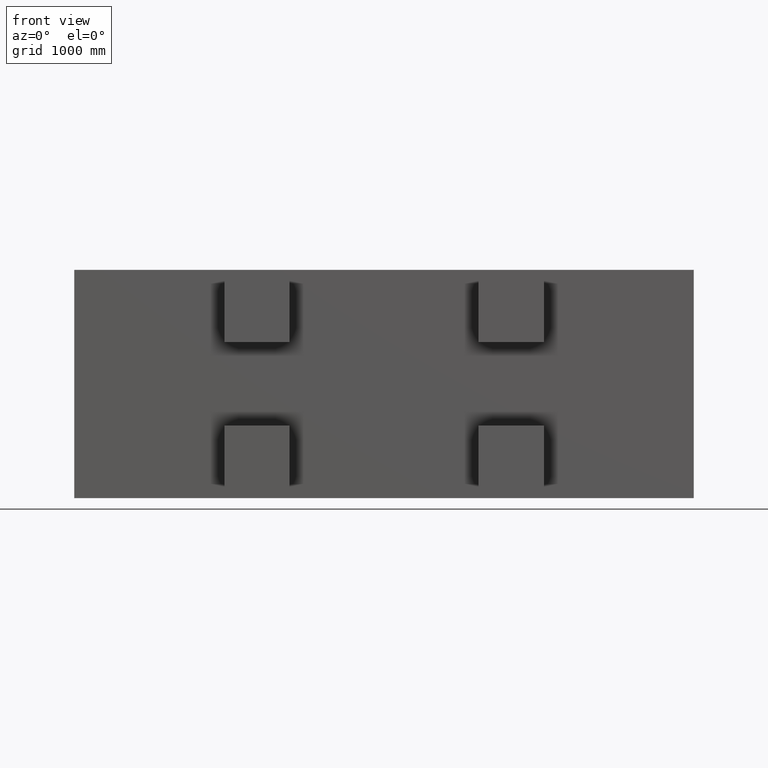
[diagram: clean part render]
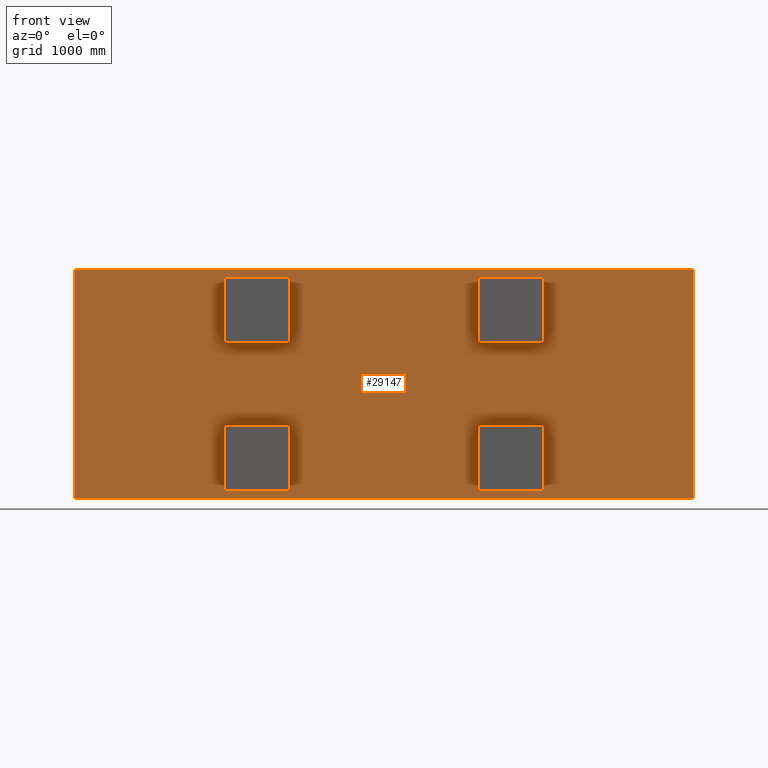
[diagram: same view with one face highlighted and labeled with its STEP entity id]
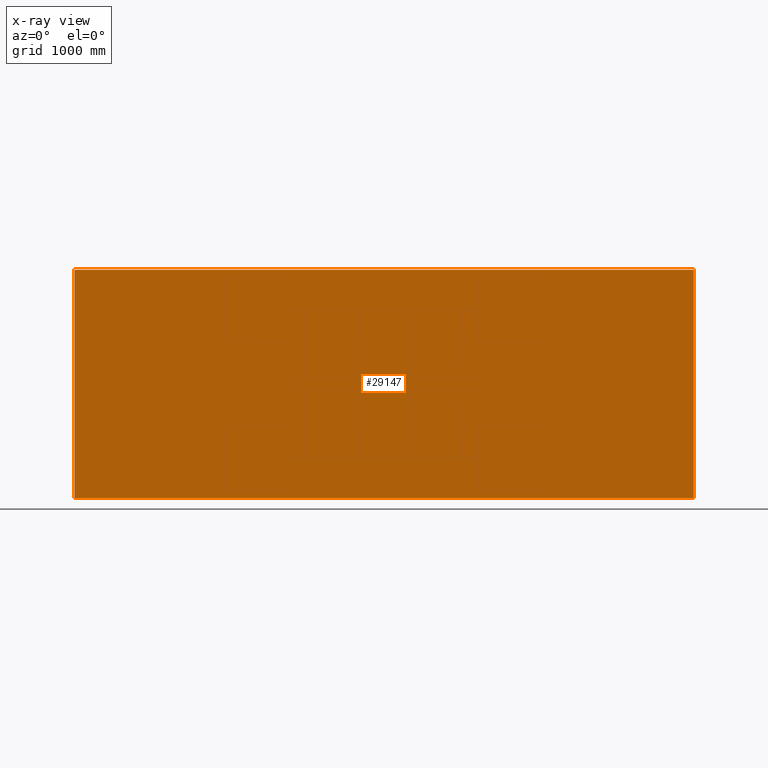
[diagram: x-ray of the same camera — body ghosted, the highlighted face saturated]
A machine part, front view. The second image highlights one B-rep face of the part: STEP entity #29147.
The next image is the same camera in x-ray: the body ghosted, the highlighted face saturated — about 0% of this face is hidden behind the body in this view.
In plain terms, the highlighted planar face has unit normal (0, -1, 0).
Its self-contained STEP definition (entity closure, byte-faithful):
#3901 = VECTOR ( 'NONE', #5804, 1000.000000000000000 ) ;
#3903 = VECTOR ( 'NONE', #5814, 1000.000000000000000 ) ;
#3906 = VECTOR ( 'NONE', #5822, 1000.000000000000000 ) ;
#3911 = VECTOR ( 'NONE', #5828, 1000.000000000000000 ) ;
#5784 = LINE ( 'NONE', #5802, #3901 ) ;
#5800 = LINE ( 'NONE', #5813, #3903 ) ;
#5802 = CARTESIAN_POINT ( 'NONE',  ( -2240.000000000000000, 700.0000000000000000, -2309.999999999999500 ) ) ;
#5803 = LINE ( 'NONE', #5821, #3906 ) ;
#5804 = DIRECTION ( 'NONE',  ( 0.0000000000000000000, 0.0000000000000000000, 1.000000000000000000 ) ) ;
#5813 = CARTESIAN_POINT ( 'NONE',  ( 5359.999999999999100, 700.0000000000000000, -2309.999999999999500 ) ) ;
#5814 = DIRECTION ( 'NONE',  ( -1.000000000000000000, 0.0000000000000000000, 0.0000000000000000000 ) ) ;
#5821 = CARTESIAN_POINT ( 'NONE',  ( 5359.999999999999100, 700.0000000000000000, -2309.999999999999500 ) ) ;
#5822 = DIRECTION ( 'NONE',  ( -0.0000000000000000000, -0.0000000000000000000, -1.000000000000000000 ) ) ;
#5826 = LINE ( 'NONE', #5827, #3911 ) ;
#5827 = CARTESIAN_POINT ( 'NONE',  ( 5359.999999999999100, 700.0000000000000000, 490.0000000000001100 ) ) ;
#5828 = DIRECTION ( 'NONE',  ( 1.000000000000000000, -0.0000000000000000000, -0.0000000000000000000 ) ) ;
#6419 = CARTESIAN_POINT ( 'NONE',  ( -2240.000000000000000, 700.0000000000000000, -2309.999999999999500 ) ) ;
#6425 = CARTESIAN_POINT ( 'NONE',  ( 5359.999999999999100, 700.0000000000000000, -2309.999999999999500 ) ) ;
#6426 = CARTESIAN_POINT ( 'NONE',  ( -2240.000000000000000, 700.0000000000000000, 490.0000000000001100 ) ) ;
#6429 = CARTESIAN_POINT ( 'NONE',  ( 5359.999999999999100, 700.0000000000000000, 490.0000000000001100 ) ) ;
#7982 = PLANE ( 'NONE',  #8946 ) ;
#7997 = FACE_OUTER_BOUND ( 'NONE', #21420, .T. ) ;
#8007 = CARTESIAN_POINT ( 'NONE',  ( -2239.999999999998600, 700.0000000000000000, 490.0000000000001100 ) ) ;
#8008 = DIRECTION ( 'NONE',  ( 0.0000000000000000000, -1.000000000000000000, 0.0000000000000000000 ) ) ;
#8009 = DIRECTION ( 'NONE',  ( 0.0000000000000000000, -0.0000000000000000000, -1.000000000000000000 ) ) ;
#8946 = AXIS2_PLACEMENT_3D ( 'NONE', #8007, #8008, #8009 ) ;
#21420 = EDGE_LOOP ( 'NONE', ( #28140, #28141, #28142, #28143 ) ) ;
#26091 = EDGE_CURVE ( 'NONE', #27813, #27820, #5784, .T. ) ;
#26095 = EDGE_CURVE ( 'NONE', #27819, #27813, #5800, .T. ) ;
#26098 = EDGE_CURVE ( 'NONE', #27823, #27819, #5803, .T. ) ;
#26100 = EDGE_CURVE ( 'NONE', #27820, #27823, #5826, .T. ) ;
#27813 = VERTEX_POINT ( 'NONE', #6419 ) ;
#27819 = VERTEX_POINT ( 'NONE', #6425 ) ;
#27820 = VERTEX_POINT ( 'NONE', #6426 ) ;
#27823 = VERTEX_POINT ( 'NONE', #6429 ) ;
#28140 = ORIENTED_EDGE ( 'NONE', *, *, #26091, .F. ) ;
#28141 = ORIENTED_EDGE ( 'NONE', *, *, #26095, .F. ) ;
#28142 = ORIENTED_EDGE ( 'NONE', *, *, #26098, .F. ) ;
#28143 = ORIENTED_EDGE ( 'NONE', *, *, #26100, .F. ) ;
#29147 = ADVANCED_FACE ( 'NONE', ( #7997 ), #7982, .T. ) ;